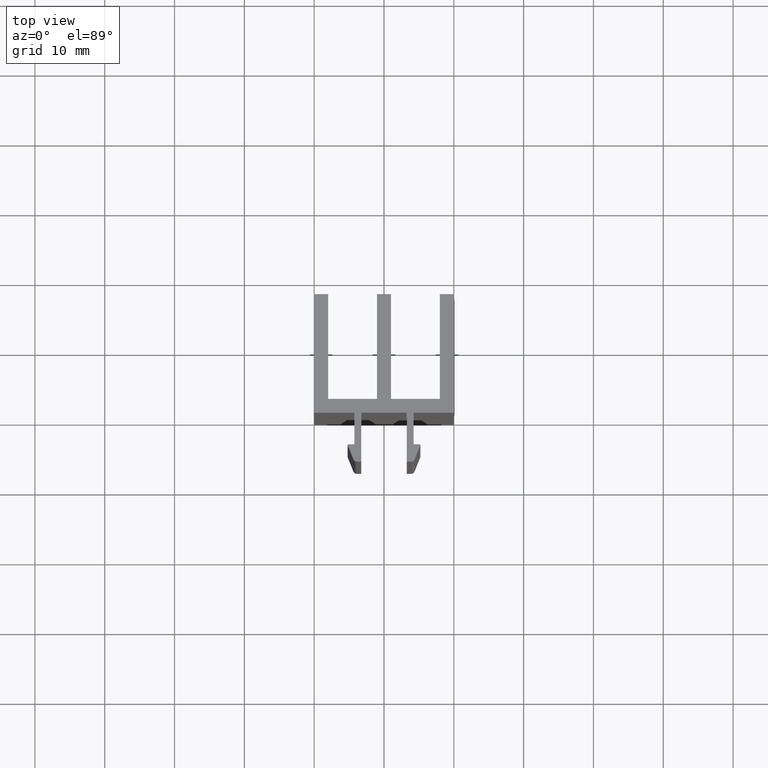
[diagram: clean part render]
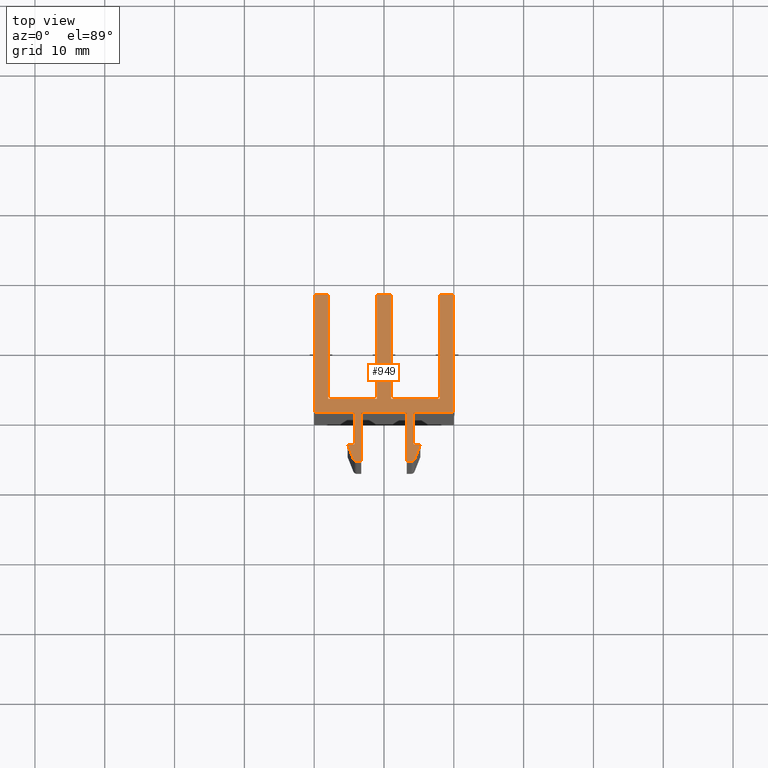
[diagram: same view with one face highlighted and labeled with its STEP entity id]
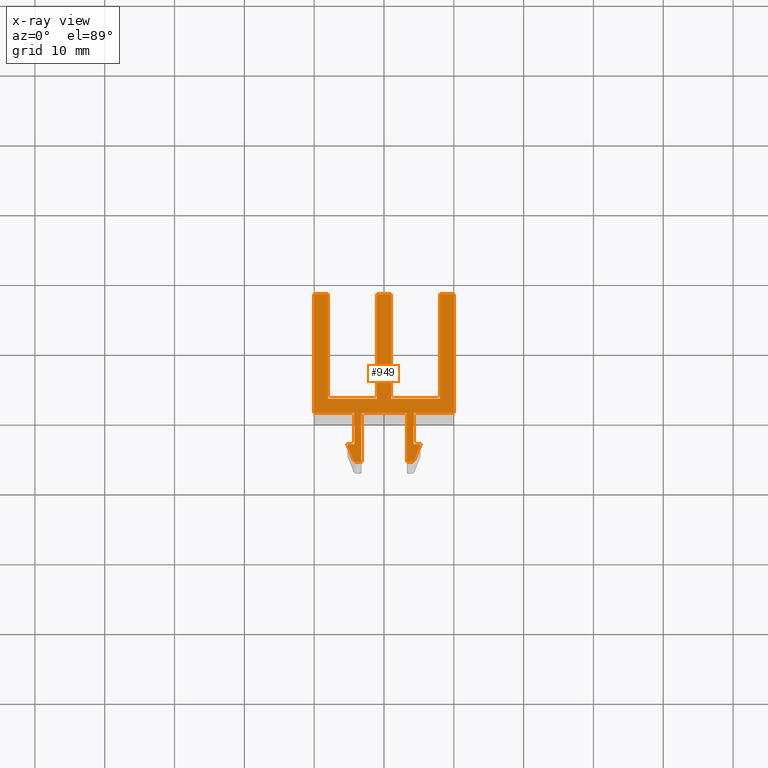
[diagram: x-ray of the same camera — body ghosted, the highlighted face saturated]
A machine part, top view. The second image highlights one B-rep face of the part: STEP entity #949.
The next image is the same camera in x-ray: the body ghosted, the highlighted face saturated — about 0% of this face is hidden behind the body in this view.
In plain terms, the highlighted planar face has unit normal (0, 0, 1).
Its self-contained STEP definition (entity closure, byte-faithful):
#18=CARTESIAN_POINT('',(-5.624278135248460,-6.685695338150254,100.0));
#19=VERTEX_POINT('',#18);
#26=CARTESIAN_POINT('',(-6.088516480689123,-6.999999999972033,100.0));
#27=VERTEX_POINT('',#26);
#28=CARTESIAN_POINT('',(-6.088516480689123,-6.499999999974079,100.0));
#29=DIRECTION('',(0.0,0.0,1.0));
#30=DIRECTION('',(1.0,0.0,0.0));
#31=AXIS2_PLACEMENT_3D('',#28,#29,#30);
#32=CIRCLE('',#31,0.499999999998001);
#33=EDGE_CURVE('',#27,#19,#32,.T.);
#57=CARTESIAN_POINT('',(-4.804855627035067,-4.637139067616772,100.0));
#58=VERTEX_POINT('',#57);
#65=CARTESIAN_POINT('',(-5.624278135248447,-6.685695338150223,100.0));
#66=DIRECTION('',(0.371390676354104,0.928476690885259,0.0));
#67=VECTOR('',#66,2.206362626702290);
#68=LINE('',#65,#67);
#69=EDGE_CURVE('',#19,#58,#68,.T.);
#89=CARTESIAN_POINT('',(-4.897703296123154,-4.499999999982038,100.0));
#90=VERTEX_POINT('',#89);
#97=CARTESIAN_POINT('',(-4.897703296123154,-4.599999999981492,100.0));
#98=DIRECTION('',(0.0,0.0,1.0));
#99=DIRECTION('',(1.0,0.0,0.0));
#100=AXIS2_PLACEMENT_3D('',#97,#98,#99);
#101=CIRCLE('',#100,0.099999999999600);
#102=EDGE_CURVE('',#58,#90,#101,.T.);
#121=CARTESIAN_POINT('',(-5.749999999977035,-4.499999999982038,100.0));
#122=VERTEX_POINT('',#121);
#129=CARTESIAN_POINT('',(-4.897703296123144,-4.499999999982038,100.0));
#130=DIRECTION('',(-1.0,0.0,0.0));
#131=VECTOR('',#130,0.852296703853892);
#132=LINE('',#129,#131);
#133=EDGE_CURVE('',#90,#122,#132,.T.);
#152=CARTESIAN_POINT('',(-5.749999999977035,0.0,100.0));
#153=VERTEX_POINT('',#152);
#160=CARTESIAN_POINT('',(-5.749999999977035,-4.499999999982008,100.0));
#161=DIRECTION('',(0.0,1.0,0.0));
#162=VECTOR('',#161,4.499999999982008);
#163=LINE('',#160,#162);
#164=EDGE_CURVE('',#122,#153,#163,.T.);
#183=CARTESIAN_POINT('',(0.0,0.0,100.0));
#184=VERTEX_POINT('',#183);
#191=CARTESIAN_POINT('',(-5.749999999977026,0.0,100.0));
#192=DIRECTION('',(1.0,0.0,0.0));
#193=VECTOR('',#192,5.749999999977026);
#194=LINE('',#191,#193);
#195=EDGE_CURVE('',#153,#184,#194,.T.);
#214=CARTESIAN_POINT('',(0.0,16.999999999932015,100.0));
#215=VERTEX_POINT('',#214);
#222=CARTESIAN_POINT('',(0.0,3.552714E-015,100.0));
#223=DIRECTION('',(0.0,1.0,0.0));
#224=VECTOR('',#223,16.999999999932012);
#225=LINE('',#222,#224);
#226=EDGE_CURVE('',#184,#215,#225,.T.);
#245=CARTESIAN_POINT('',(-1.999999999992042,16.999999999932015,100.0));
#246=VERTEX_POINT('',#245);
#253=CARTESIAN_POINT('',(-3.441691E-014,16.999999999932015,100.0));
#254=DIRECTION('',(-1.0,0.0,0.0));
#255=VECTOR('',#254,1.999999999992008);
#256=LINE('',#253,#255);
#257=EDGE_CURVE('',#215,#246,#256,.T.);
#276=CARTESIAN_POINT('',(-1.999999999992042,1.999999999992042,100.0));
#277=VERTEX_POINT('',#276);
#284=CARTESIAN_POINT('',(-1.999999999992042,16.999999999932044,100.0));
#285=DIRECTION('',(0.0,-1.0,0.0));
#286=VECTOR('',#285,14.999999999940002);
#287=LINE('',#284,#286);
#288=EDGE_CURVE('',#246,#277,#287,.T.);
#307=CARTESIAN_POINT('',(-8.999999999964075,1.999999999992042,100.0));
#308=VERTEX_POINT('',#307);
#315=CARTESIAN_POINT('',(-1.999999999992085,1.999999999992042,100.0));
#316=DIRECTION('',(-1.0,0.0,0.0));
#317=VECTOR('',#316,6.999999999971990);
#318=LINE('',#315,#317);
#319=EDGE_CURVE('',#277,#308,#318,.T.);
#338=CARTESIAN_POINT('',(-8.999999999964075,16.999999999932015,100.0));
#339=VERTEX_POINT('',#338);
#346=CARTESIAN_POINT('',(-8.999999999964075,1.999999999992012,100.0));
#347=DIRECTION('',(0.0,1.0,0.0));
#348=VECTOR('',#347,14.999999999940004);
#349=LINE('',#346,#348);
#350=EDGE_CURVE('',#308,#339,#349,.T.);
#369=CARTESIAN_POINT('',(-10.999999999956117,16.999999999932015,100.0));
#370=VERTEX_POINT('',#369);
#377=CARTESIAN_POINT('',(-8.999999999964109,16.999999999932015,100.0));
#378=DIRECTION('',(-1.0,0.0,0.0));
#379=VECTOR('',#378,1.999999999992008);
#380=LINE('',#377,#379);
#381=EDGE_CURVE('',#339,#370,#380,.T.);
#400=CARTESIAN_POINT('',(-10.999999999956117,1.999999999992042,100.0));
#401=VERTEX_POINT('',#400);
#408=CARTESIAN_POINT('',(-10.999999999956117,16.999999999932044,100.0));
#409=DIRECTION('',(0.0,-1.0,0.0));
#410=VECTOR('',#409,14.999999999940002);
#411=LINE('',#408,#410);
#412=EDGE_CURVE('',#370,#401,#411,.T.);
#431=CARTESIAN_POINT('',(-17.999999999928150,1.999999999992042,100.0));
#432=VERTEX_POINT('',#431);
#439=CARTESIAN_POINT('',(-10.999999999956160,1.999999999992042,100.0));
#440=DIRECTION('',(-1.0,0.0,0.0));
#441=VECTOR('',#440,6.999999999971990);
#442=LINE('',#439,#441);
#443=EDGE_CURVE('',#401,#432,#442,.T.);
#462=CARTESIAN_POINT('',(-17.999999999928150,16.999999999932015,100.0));
#463=VERTEX_POINT('',#462);
#470=CARTESIAN_POINT('',(-17.999999999928150,1.999999999992012,100.0));
#471=DIRECTION('',(0.0,1.0,0.0));
#472=VECTOR('',#471,14.999999999940004);
#473=LINE('',#470,#472);
#474=EDGE_CURVE('',#432,#463,#473,.T.);
#493=CARTESIAN_POINT('',(-19.999999999920192,16.999999999932015,100.0));
#494=VERTEX_POINT('',#493);
#501=CARTESIAN_POINT('',(-17.999999999928185,16.999999999932015,100.0));
#502=DIRECTION('',(-1.0,0.0,0.0));
#503=VECTOR('',#502,1.999999999992006);
#504=LINE('',#501,#503);
#505=EDGE_CURVE('',#463,#494,#504,.T.);
#524=CARTESIAN_POINT('',(-19.999999999920192,0.0,100.0));
#525=VERTEX_POINT('',#524);
#532=CARTESIAN_POINT('',(-19.999999999920192,16.999999999931994,100.0));
#533=DIRECTION('',(0.0,-1.0,0.0));
#534=VECTOR('',#533,16.999999999931994);
#535=LINE('',#532,#534);
#536=EDGE_CURVE('',#494,#525,#535,.T.);
#555=CARTESIAN_POINT('',(-14.249999999943157,0.0,100.0));
#556=VERTEX_POINT('',#555);
#563=CARTESIAN_POINT('',(-19.999999999920163,0.0,100.0));
#564=DIRECTION('',(1.0,0.0,0.0));
#565=VECTOR('',#564,5.749999999977007);
#566=LINE('',#563,#565);
#567=EDGE_CURVE('',#525,#556,#566,.T.);
#586=CARTESIAN_POINT('',(-14.249999999943157,-4.499999999982038,100.0));
#587=VERTEX_POINT('',#586);
#594=CARTESIAN_POINT('',(-14.249999999943157,-2.930989E-014,100.0));
#595=DIRECTION('',(0.0,-1.0,0.0));
#596=VECTOR('',#595,4.499999999982008);
#597=LINE('',#594,#596);
#598=EDGE_CURVE('',#556,#587,#597,.T.);
#617=CARTESIAN_POINT('',(-15.102296703797037,-4.499999999981810,100.0));
#618=VERTEX_POINT('',#617);
#625=CARTESIAN_POINT('',(-14.249999999943128,-4.499999999982038,100.0));
#626=DIRECTION('',(-1.0,0.0,0.0));
#627=VECTOR('',#626,0.852296703853909);
#628=LINE('',#625,#627);
#629=EDGE_CURVE('',#587,#618,#628,.T.);
#649=CARTESIAN_POINT('',(-15.195144372885125,-4.637139067616772,100.0));
#650=VERTEX_POINT('',#649);
#657=CARTESIAN_POINT('',(-15.102296703797037,-4.599999999981492,100.0));
#658=DIRECTION('',(0.0,0.0,1.0));
#659=DIRECTION('',(1.0,0.0,0.0));
#660=AXIS2_PLACEMENT_3D('',#657,#658,#659);
#661=CIRCLE('',#660,0.099999999999601);
#662=EDGE_CURVE('',#618,#650,#661,.T.);
#681=CARTESIAN_POINT('',(-14.375721864671959,-6.685695338150254,100.0));
#682=VERTEX_POINT('',#681);
#689=CARTESIAN_POINT('',(-15.195144372885112,-4.637139067616802,100.0));
#690=DIRECTION('',(0.371390676354104,-0.928476690885259,0.0));
#691=VECTOR('',#690,2.206362626702290);
#692=LINE('',#689,#691);
#693=EDGE_CURVE('',#650,#682,#692,.T.);
#713=CARTESIAN_POINT('',(-13.911483519230842,-6.999999999972033,100.0));
#714=VERTEX_POINT('',#713);
#721=CARTESIAN_POINT('',(-13.911483519231069,-6.499999999974079,100.0));
#722=DIRECTION('',(0.0,0.0,1.0));
#723=DIRECTION('',(1.0,0.0,0.0));
#724=AXIS2_PLACEMENT_3D('',#721,#722,#723);
#725=CIRCLE('',#724,0.499999999998000);
#726=EDGE_CURVE('',#682,#714,#725,.T.);
#745=CARTESIAN_POINT('',(-13.249999999947022,-6.999999999972033,100.0));
#746=VERTEX_POINT('',#745);
#753=CARTESIAN_POINT('',(-13.911483519230913,-6.999999999972033,100.0));
#754=DIRECTION('',(1.0,0.0,0.0));
#755=VECTOR('',#754,0.661483519283891);
#756=LINE('',#753,#755);
#757=EDGE_CURVE('',#714,#746,#756,.T.);
#776=CARTESIAN_POINT('',(-13.249999999947249,0.0,100.0));
#777=VERTEX_POINT('',#776);
#784=CARTESIAN_POINT('',(-13.249999999947022,-6.999999999972009,100.0));
#785=DIRECTION('',(0.0,1.0,0.0));
#786=VECTOR('',#785,6.999999999972009);
#787=LINE('',#784,#786);
#788=EDGE_CURVE('',#746,#777,#787,.T.);
#807=CARTESIAN_POINT('',(-6.749999999973170,0.0,100.0));
#808=VERTEX_POINT('',#807);
#815=CARTESIAN_POINT('',(-13.249999999947168,0.0,100.0));
#816=DIRECTION('',(1.0,0.0,0.0));
#817=VECTOR('',#816,6.499999999973998);
#818=LINE('',#815,#817);
#819=EDGE_CURVE('',#777,#808,#818,.T.);
#838=CARTESIAN_POINT('',(-6.749999999972943,-6.999999999972033,100.0));
#839=VERTEX_POINT('',#838);
#846=CARTESIAN_POINT('',(-6.749999999973170,-2.398082E-014,100.0));
#847=DIRECTION('',(0.0,-1.0,0.0));
#848=VECTOR('',#847,6.999999999972009);
#849=LINE('',#846,#848);
#850=EDGE_CURVE('',#808,#839,#849,.T.);
#868=CARTESIAN_POINT('',(-6.749999999973031,-6.999999999972033,100.0));
#869=DIRECTION('',(1.0,0.0,0.0));
#870=VECTOR('',#869,0.661483519283908);
#871=LINE('',#868,#870);
#872=EDGE_CURVE('',#839,#27,#871,.T.);
#914=CARTESIAN_POINT('',(-22.000004729109151,-9.400004729100829,100.0));
#915=DIRECTION('',(0.0,0.0,1.0));
#916=DIRECTION('',(1.0,0.0,0.0));
#917=AXIS2_PLACEMENT_3D('',#914,#915,#916);
#918=PLANE('',#917);
#919=ORIENTED_EDGE('',*,*,#33,.T.);
#920=ORIENTED_EDGE('',*,*,#69,.T.);
#921=ORIENTED_EDGE('',*,*,#102,.T.);
#922=ORIENTED_EDGE('',*,*,#133,.T.);
#923=ORIENTED_EDGE('',*,*,#164,.T.);
#924=ORIENTED_EDGE('',*,*,#195,.T.);
#925=ORIENTED_EDGE('',*,*,#226,.T.);
#926=ORIENTED_EDGE('',*,*,#257,.T.);
#927=ORIENTED_EDGE('',*,*,#288,.T.);
#928=ORIENTED_EDGE('',*,*,#319,.T.);
#929=ORIENTED_EDGE('',*,*,#350,.T.);
#930=ORIENTED_EDGE('',*,*,#381,.T.);
#931=ORIENTED_EDGE('',*,*,#412,.T.);
#932=ORIENTED_EDGE('',*,*,#443,.T.);
#933=ORIENTED_EDGE('',*,*,#474,.T.);
#934=ORIENTED_EDGE('',*,*,#505,.T.);
#935=ORIENTED_EDGE('',*,*,#536,.T.);
#936=ORIENTED_EDGE('',*,*,#567,.T.);
#937=ORIENTED_EDGE('',*,*,#598,.T.);
#938=ORIENTED_EDGE('',*,*,#629,.T.);
#939=ORIENTED_EDGE('',*,*,#662,.T.);
#940=ORIENTED_EDGE('',*,*,#693,.T.);
#941=ORIENTED_EDGE('',*,*,#726,.T.);
#942=ORIENTED_EDGE('',*,*,#757,.T.);
#943=ORIENTED_EDGE('',*,*,#788,.T.);
#944=ORIENTED_EDGE('',*,*,#819,.T.);
#945=ORIENTED_EDGE('',*,*,#850,.T.);
#946=ORIENTED_EDGE('',*,*,#872,.T.);
#947=EDGE_LOOP('',(#919,#920,#921,#922,#923,#924,#925,#926,#927,#928,#929,#930,#931,#932,#933,#934,#935,#936,#937,#938,#939,#940,#941,#942,#943,#944,#945,#946));
#948=FACE_OUTER_BOUND('',#947,.T.);
#949=ADVANCED_FACE('',(#948),#918,.T.);